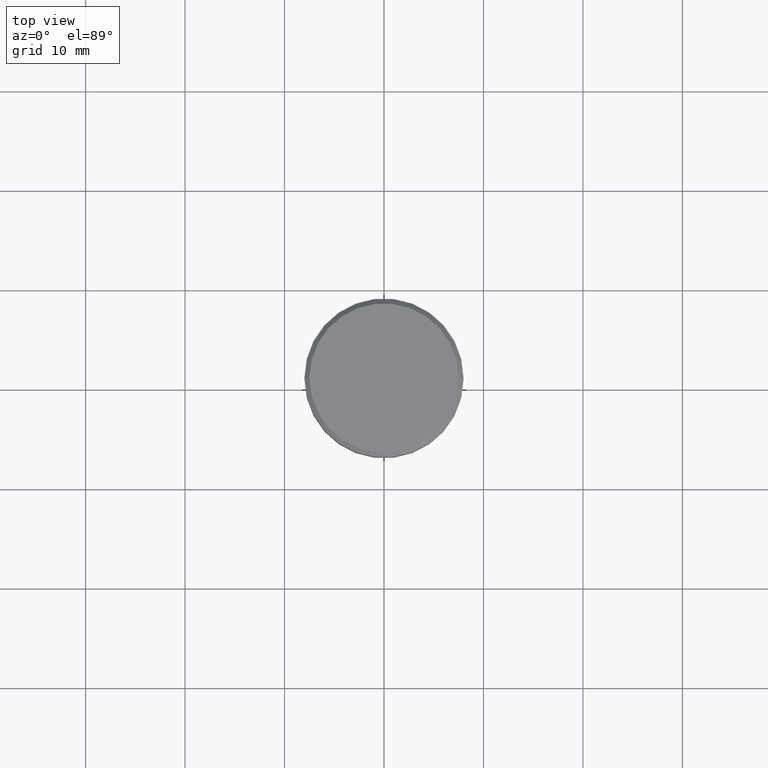
[diagram: clean part render]
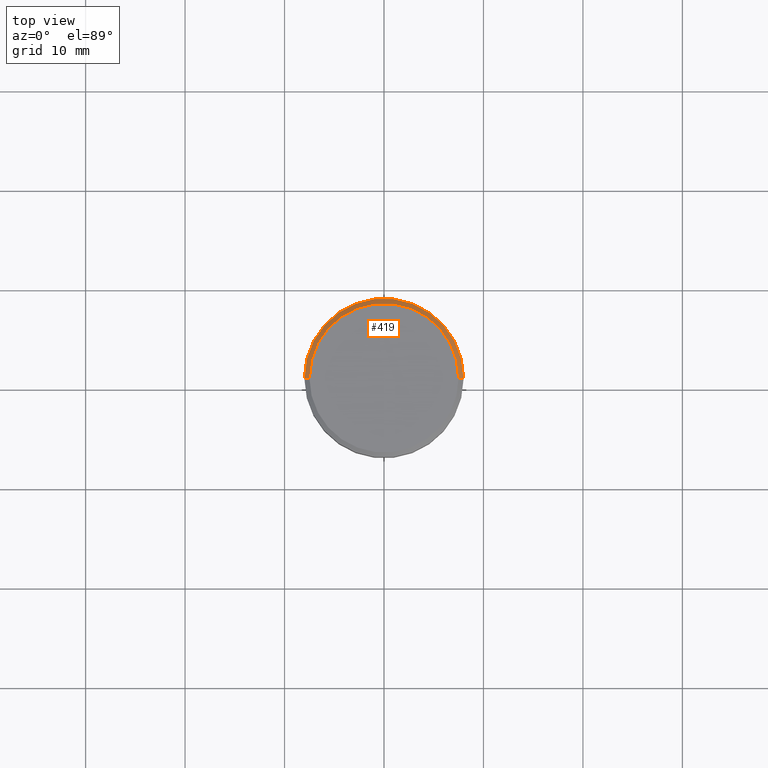
[diagram: same view with one face highlighted and labeled with its STEP entity id]
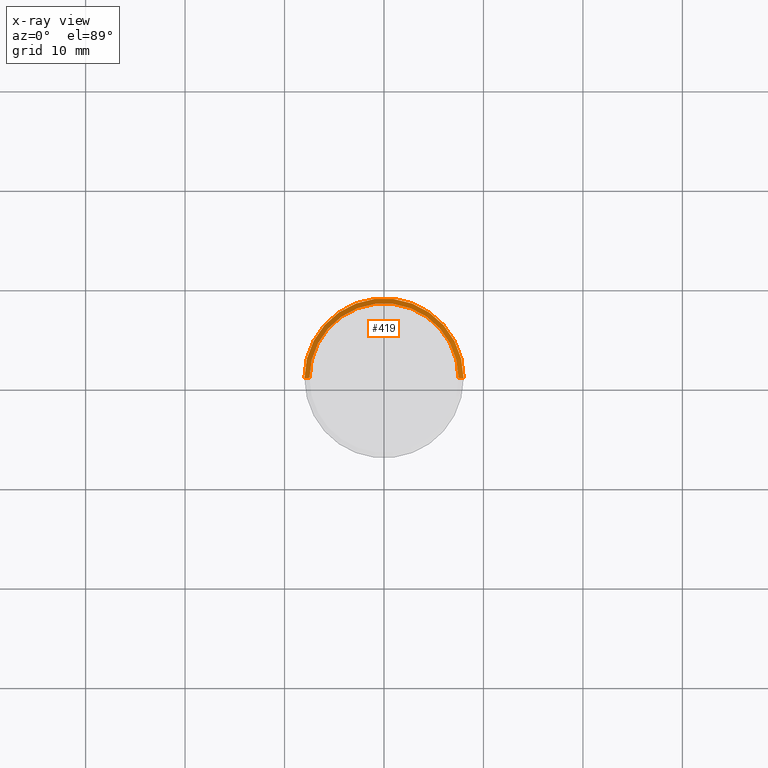
[diagram: x-ray of the same camera — body ghosted, the highlighted face saturated]
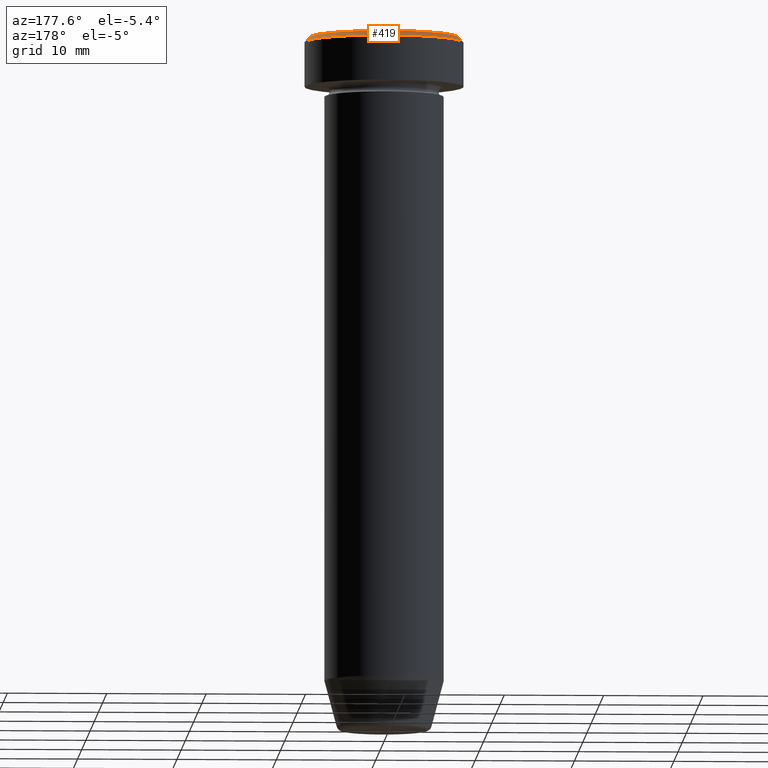
[diagram: same view with one face highlighted and labeled with its STEP entity id]
A machine part, top view. The second image highlights one B-rep face of the part: STEP entity #419.
The next image is the same camera in x-ray: the body ghosted, the highlighted face saturated — about 0% of this face is hidden behind the body in this view.
A second angle (auxiliary view) of the same face is appended — the face is thin or edge-on in the first view.
In plain terms, the highlighted conical surface has half-angle 45 deg.
Its self-contained STEP definition (entity closure, byte-faithful):
#16 = VERTEX_POINT ( 'NONE', #255 ) ;
#64 = EDGE_CURVE ( 'NONE', #235, #16, #475, .T. ) ;
#66 = VECTOR ( 'NONE', #347, 1000.000000000000114 ) ;
#67 = EDGE_CURVE ( 'NONE', #223, #16, #442, .T. ) ;
#86 = DIRECTION ( 'NONE',  ( 1.000000000000000000, 0.000000000000000000, 0.000000000000000000 ) ) ;
#94 = LINE ( 'NONE', #285, #159 ) ;
#103 = CARTESIAN_POINT ( 'NONE',  ( 0.000000000000000000, 0.000000000000000000, 0.000000000000000000 ) ) ;
#124 = VERTEX_POINT ( 'NONE', #398 ) ;
#126 = ORIENTED_EDGE ( 'NONE', *, *, #192, .F. ) ;
#133 = DIRECTION ( 'NONE',  ( 0.000000000000000000, 0.000000000000000000, -1.000000000000000000 ) ) ;
#158 = CARTESIAN_POINT ( 'NONE',  ( 7.500000000000009770, 9.184850993605161750E-16, 0.000000000000000000 ) ) ;
#159 = VECTOR ( 'NONE', #319, 1000.000000000000114 ) ;
#185 = CIRCLE ( 'NONE', #291, 7.500000000000009770 ) ;
#192 = EDGE_CURVE ( 'NONE', #223, #124, #185, .T. ) ;
#223 = VERTEX_POINT ( 'NONE', #548 ) ;
#235 = VERTEX_POINT ( 'NONE', #443 ) ;
#255 = CARTESIAN_POINT ( 'NONE',  ( 8.000000000000000000, 0.000000000000000000, -0.4999999999999935052 ) ) ;
#285 = CARTESIAN_POINT ( 'NONE',  ( -7.500000000000009770, 0.000000000000000000, 0.000000000000000000 ) ) ;
#291 = AXIS2_PLACEMENT_3D ( 'NONE', #402, #499, #86 ) ;
#319 = DIRECTION ( 'NONE',  ( -0.7071067811865451302, 0.000000000000000000, -0.7071067811865500152 ) ) ;
#345 = CONICAL_SURFACE ( 'NONE', #422, 7.500000000000009770, 0.7853981633974447263 ) ;
#347 = DIRECTION ( 'NONE',  ( 0.7071067811865451302, 8.659560562354904508E-17, -0.7071067811865500152 ) ) ;
#351 = CARTESIAN_POINT ( 'NONE',  ( 0.000000000000000000, 0.000000000000000000, -0.4999999999999935052 ) ) ;
#362 = ORIENTED_EDGE ( 'NONE', *, *, #64, .F. ) ;
#366 = ORIENTED_EDGE ( 'NONE', *, *, #67, .T. ) ;
#398 = CARTESIAN_POINT ( 'NONE',  ( -7.500000000000009770, 0.000000000000000000, 0.000000000000000000 ) ) ;
#402 = CARTESIAN_POINT ( 'NONE',  ( 0.000000000000000000, 0.000000000000000000, 0.000000000000000000 ) ) ;
#419 = ADVANCED_FACE ( 'NONE', ( #573 ), #345, .T. ) ;
#422 = AXIS2_PLACEMENT_3D ( 'NONE', #103, #133, #459 ) ;
#426 = EDGE_CURVE ( 'NONE', #124, #235, #94, .T. ) ;
#442 = LINE ( 'NONE', #158, #66 ) ;
#443 = CARTESIAN_POINT ( 'NONE',  ( -8.000000000000000000, 9.797174393178825657E-16, -0.4999999999999935052 ) ) ;
#459 = DIRECTION ( 'NONE',  ( -1.000000000000000000, 0.000000000000000000, 0.000000000000000000 ) ) ;
#475 = CIRCLE ( 'NONE', #496, 8.000000000000000000 ) ;
#483 = DIRECTION ( 'NONE',  ( 1.000000000000000000, 0.000000000000000000, 0.000000000000000000 ) ) ;
#490 = DIRECTION ( 'NONE',  ( 0.000000000000000000, 0.000000000000000000, -1.000000000000000000 ) ) ;
#496 = AXIS2_PLACEMENT_3D ( 'NONE', #351, #490, #483 ) ;
#499 = DIRECTION ( 'NONE',  ( -0.000000000000000000, -0.000000000000000000, 1.000000000000000000 ) ) ;
#500 = EDGE_LOOP ( 'NONE', ( #126, #366, #362, #507 ) ) ;
#507 = ORIENTED_EDGE ( 'NONE', *, *, #426, .F. ) ;
#548 = CARTESIAN_POINT ( 'NONE',  ( 7.500000000000009770, 9.491012693391993703E-16, 0.000000000000000000 ) ) ;
#573 = FACE_OUTER_BOUND ( 'NONE', #500, .T. ) ;